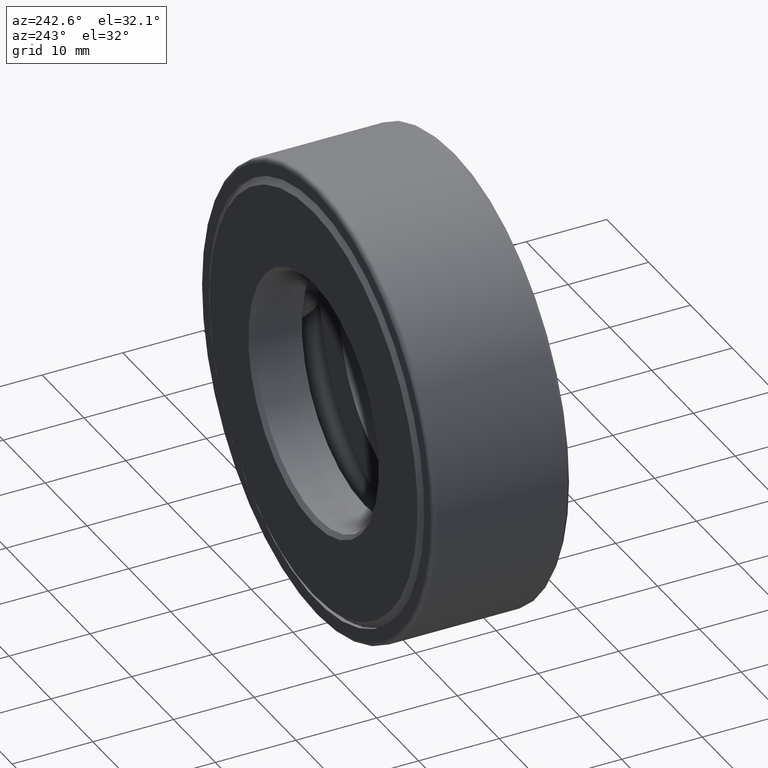
[diagram: clean part render]
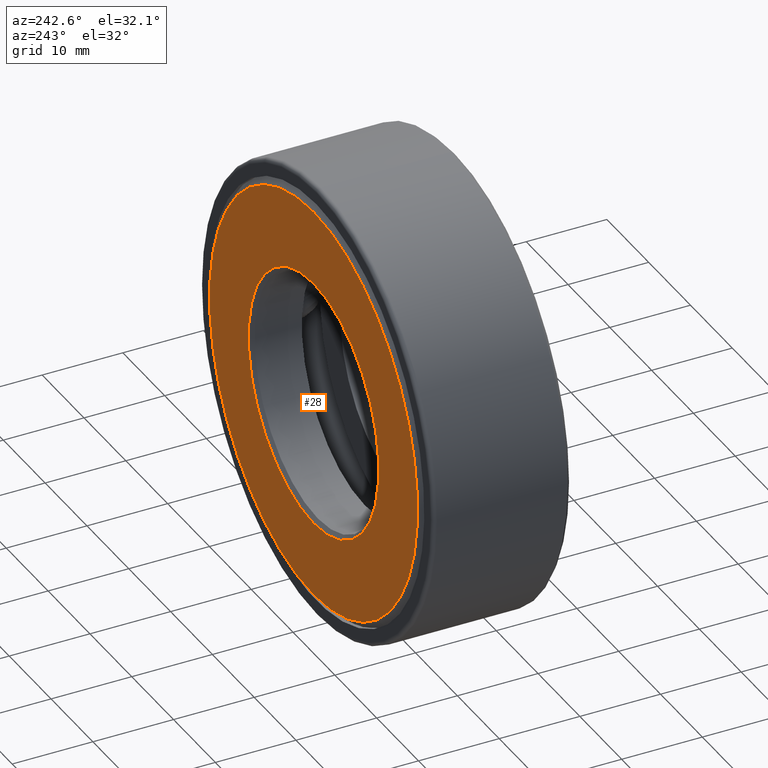
[diagram: same view with one face highlighted and labeled with its STEP entity id]
A machine part, auxiliary view. The second image highlights one B-rep face of the part: STEP entity #28.
In plain terms, the highlighted planar face has unit normal (-0, 1, 0).
Its self-contained STEP definition (entity closure, byte-faithful):
#28 = ADVANCED_FACE ( 'NONE', ( #478, #493 ), #378, .T. ) ;
#31 = DIRECTION ( 'NONE',  ( 0.0000000000000000000, 0.0000000000000000000, 1.000000000000000000 ) ) ;
#42 = AXIS2_PLACEMENT_3D ( 'NONE', #323, #511, #31 ) ;
#129 = CARTESIAN_POINT ( 'NONE',  ( 0.0000000000000000000, 0.6875000000000000000, 0.0000000000000000000 ) ) ;
#150 = AXIS2_PLACEMENT_3D ( 'NONE', #129, #470, #275 ) ;
#202 = EDGE_CURVE ( 'NONE', #282, #282, #416, .T. ) ;
#215 = EDGE_CURVE ( 'NONE', #536, #536, #331, .T. ) ;
#223 = ORIENTED_EDGE ( 'NONE', *, *, #202, .T. ) ;
#241 = CARTESIAN_POINT ( 'NONE',  ( 0.0000000000000000000, 0.6875000000000000000, 0.0000000000000000000 ) ) ;
#275 = DIRECTION ( 'NONE',  ( 0.0000000000000000000, 0.0000000000000000000, 1.000000000000000000 ) ) ;
#282 = VERTEX_POINT ( 'NONE', #431 ) ;
#323 = CARTESIAN_POINT ( 'NONE',  ( 0.0000000000000000000, 0.6875000000000000000, 0.0000000000000000000 ) ) ;
#331 = CIRCLE ( 'NONE', #42, 0.6137500000000000200 ) ;
#378 = PLANE ( 'NONE',  #150 ) ;
#383 = CARTESIAN_POINT ( 'NONE',  ( 0.0000000000000000000, 0.6875000000000000000, 0.6137500000000000200 ) ) ;
#398 = DIRECTION ( 'NONE',  ( 0.0000000000000000000, 0.0000000000000000000, 1.000000000000000000 ) ) ;
#416 = CIRCLE ( 'NONE', #562, 0.9787499999999997900 ) ;
#420 = EDGE_LOOP ( 'NONE', ( #429 ) ) ;
#429 = ORIENTED_EDGE ( 'NONE', *, *, #215, .F. ) ;
#431 = CARTESIAN_POINT ( 'NONE',  ( 0.0000000000000000000, 0.6875000000000000000, 0.9787499999999997900 ) ) ;
#470 = DIRECTION ( 'NONE',  ( -0.0000000000000000000, 1.000000000000000000, 0.0000000000000000000 ) ) ;
#478 = FACE_OUTER_BOUND ( 'NONE', #584, .T. ) ;
#493 = FACE_BOUND ( 'NONE', #420, .T. ) ;
#511 = DIRECTION ( 'NONE',  ( -0.0000000000000000000, 1.000000000000000000, -0.0000000000000000000 ) ) ;
#536 = VERTEX_POINT ( 'NONE', #383 ) ;
#562 = AXIS2_PLACEMENT_3D ( 'NONE', #241, #569, #398 ) ;
#569 = DIRECTION ( 'NONE',  ( -0.0000000000000000000, 1.000000000000000000, -0.0000000000000000000 ) ) ;
#584 = EDGE_LOOP ( 'NONE', ( #223 ) ) ;